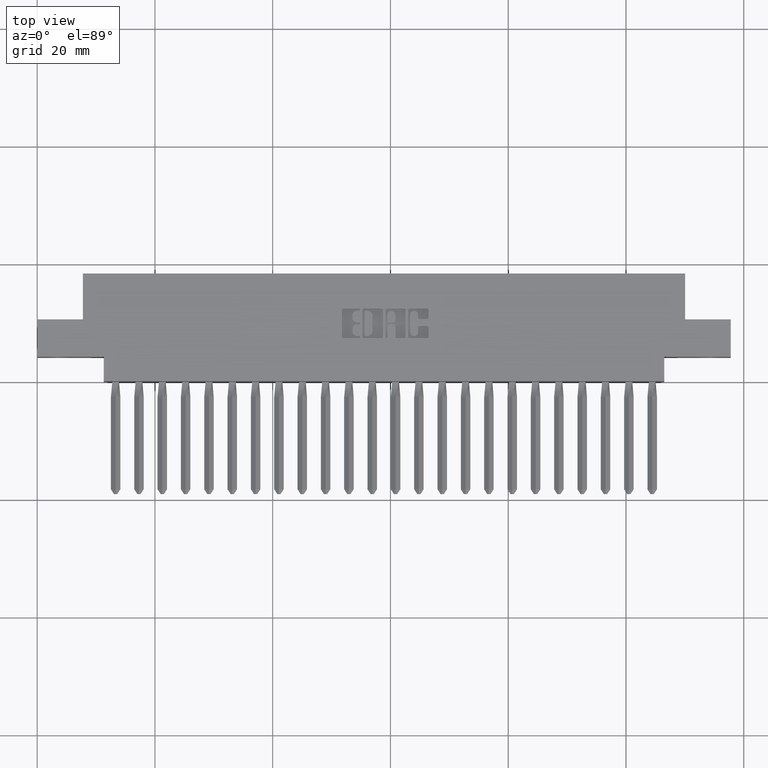
[diagram: clean part render]
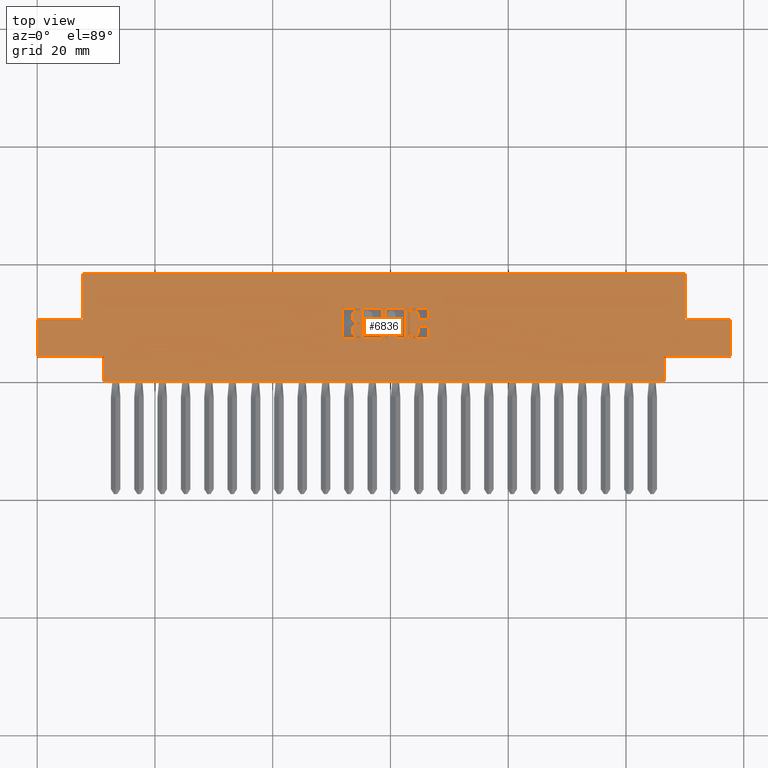
[diagram: same view with one face highlighted and labeled with its STEP entity id]
A machine part, top view. The second image highlights one B-rep face of the part: STEP entity #6836.
In plain terms, the highlighted planar face has unit normal (0, 0, -1).
Its self-contained STEP definition (entity closure, byte-faithful):
#42 = VERTEX_POINT ( 'NONE', #10212 ) ;
#85 = CIRCLE ( 'NONE', #21577, 0.009815670203806891800 ) ;
#97 = DIRECTION ( 'NONE',  ( 1.000000000000000000, 0.0000000000000000000, 0.0000000000000000000 ) ) ;
#242 = DIRECTION ( 'NONE',  ( 0.0000000000000000000, 1.000000000000000000, -0.0000000000000000000 ) ) ;
#245 = DIRECTION ( 'NONE',  ( 1.000000000000000000, 0.0000000000000000000, 0.0000000000000000000 ) ) ;
#303 = DIRECTION ( 'NONE',  ( -0.0000000000000000000, 0.0000000000000000000, 1.000000000000000000 ) ) ;
#346 = CARTESIAN_POINT ( 'NONE',  ( 4.333000000000000200, 0.4129999999999999200, -5.119635943835509400E-016 ) ) ;
#368 = AXIS2_PLACEMENT_3D ( 'NONE', #27549, #16309, #30520 ) ;
#476 = ORIENTED_EDGE ( 'NONE', *, *, #24068, .F. ) ;
#486 = EDGE_CURVE ( 'NONE', #7950, #7148, #17463, .T. ) ;
#493 = ORIENTED_EDGE ( 'NONE', *, *, #15737, .T. ) ;
#508 = VERTEX_POINT ( 'NONE', #2877 ) ;
#562 = CARTESIAN_POINT ( 'NONE',  ( 2.334459680570987400, 0.2937142671046481000, 0.0000000000000000000 ) ) ;
#580 = CARTESIAN_POINT ( 'NONE',  ( 2.520221239177992300, 0.4431578459575297200, 0.0000000000000000000 ) ) ;
#646 = CIRCLE ( 'NONE', #25206, 0.03141014465217467600 ) ;
#661 = VERTEX_POINT ( 'NONE', #23542 ) ;
#699 = DIRECTION ( 'NONE',  ( -0.0000000000000000000, 0.0000000000000000000, 1.000000000000000000 ) ) ;
#740 = LINE ( 'NONE', #24243, #13497 ) ;
#797 = CARTESIAN_POINT ( 'NONE',  ( 2.615678631909940300, 0.2966589681657831300, 0.0000000000000000000 ) ) ;
#874 = VECTOR ( 'NONE', #2374, 39.37007874015748100 ) ;
#929 = DIRECTION ( 'NONE',  ( -0.0000000000000000000, 0.0000000000000000000, 1.000000000000000000 ) ) ;
#936 = ORIENTED_EDGE ( 'NONE', *, *, #10068, .F. ) ;
#1008 = VERTEX_POINT ( 'NONE', #32148 ) ;
#1049 = LINE ( 'NONE', #25144, #32355 ) ;
#1052 = CARTESIAN_POINT ( 'NONE',  ( 0.3050000000000000500, 0.7199999999999999700, 0.0000000000000000000 ) ) ;
#1079 = VECTOR ( 'NONE', #20606, 39.37007874015748100 ) ;
#1107 = DIRECTION ( 'NONE',  ( 1.000000000000000000, 0.0000000000000000000, 0.0000000000000000000 ) ) ;
#1147 = ORIENTED_EDGE ( 'NONE', *, *, #15824, .F. ) ;
#1150 = LINE ( 'NONE', #12320, #7336 ) ;
#1162 = DIRECTION ( 'NONE',  ( -0.0000000000000000000, 0.0000000000000000000, 1.000000000000000000 ) ) ;
#1185 = EDGE_CURVE ( 'NONE', #32964, #28996, #646, .T. ) ;
#1305 = DIRECTION ( 'NONE',  ( 1.000000000000000000, 0.0000000000000000000, 0.0000000000000000000 ) ) ;
#1366 = CARTESIAN_POINT ( 'NONE',  ( 2.341330649713647000, 0.3683133606535457000, 0.0000000000000000000 ) ) ;
#1439 = ORIENTED_EDGE ( 'NONE', *, *, #30809, .T. ) ;
#1575 = EDGE_CURVE ( 'NONE', #15318, #29905, #17348, .T. ) ;
#1680 = VERTEX_POINT ( 'NONE', #21022 ) ;
#1738 = CARTESIAN_POINT ( 'NONE',  ( 2.138637060005125400, 0.4380046191005199100, 0.0000000000000000000 ) ) ;
#1806 = CARTESIAN_POINT ( 'NONE',  ( 2.038026440416115500, 0.4733410318342102200, 0.0000000000000000000 ) ) ;
#1928 = CARTESIAN_POINT ( 'NONE',  ( 2.138637060005109900, 0.3319953808994904900, 0.0000000000000000000 ) ) ;
#1955 = CARTESIAN_POINT ( 'NONE',  ( 2.605862961706167300, 0.4237718973050387800, 0.0000000000000000000 ) ) ;
#1976 = CIRCLE ( 'NONE', #6622, 0.009815670203804706000 ) ;
#1998 = EDGE_CURVE ( 'NONE', #17880, #661, #3234, .T. ) ;
#2214 = CARTESIAN_POINT ( 'NONE',  ( 2.107226915352909700, 0.4232811137948585000, 0.0000000000000000000 ) ) ;
#2237 = ORIENTED_EDGE ( 'NONE', *, *, #22080, .F. ) ;
#2276 = ORIENTED_EDGE ( 'NONE', *, *, #12579, .F. ) ;
#2369 = CARTESIAN_POINT ( 'NONE',  ( 4.637999999999999900, 0.7199999999999999700, 0.0000000000000000000 ) ) ;
#2374 = DIRECTION ( 'NONE',  ( 0.0000000000000000000, -1.000000000000000000, 0.0000000000000000000 ) ) ;
#2491 = EDGE_CURVE ( 'NONE', #7950, #30888, #30585, .T. ) ;
#2497 = VERTEX_POINT ( 'NONE', #11919 ) ;
#2531 = DIRECTION ( 'NONE',  ( 1.000000000000000000, 0.0000000000000000000, 0.0000000000000000000 ) ) ;
#2668 = DIRECTION ( 'NONE',  ( -0.0000000000000000000, 0.0000000000000000000, 1.000000000000000000 ) ) ;
#2675 = ORIENTED_EDGE ( 'NONE', *, *, #21218, .F. ) ;
#2725 = EDGE_CURVE ( 'NONE', #32699, #33099, #1976, .T. ) ;
#2866 = EDGE_CURVE ( 'NONE', #24790, #24560, #31154, .T. ) ;
#2877 = CARTESIAN_POINT ( 'NONE',  ( 2.615678631909971900, 0.4733410318341949600, 0.0000000000000000000 ) ) ;
#2937 = CARTESIAN_POINT ( 'NONE',  ( -0.0000000000000000000, 0.4139562271012337500, 0.0000000000000000000 ) ) ;
#3080 = ORIENTED_EDGE ( 'NONE', *, *, #10554, .F. ) ;
#3096 = CARTESIAN_POINT ( 'NONE',  ( 2.520221239177999000, 0.3268421540424530900, 0.0000000000000000000 ) ) ;
#3125 = DIRECTION ( 'NONE',  ( -0.0000000000000000000, -1.000000000000000000, -0.0000000000000000000 ) ) ;
#3173 = CARTESIAN_POINT ( 'NONE',  ( 4.637999999999999900, 0.4129999999999999200, 0.0000000000000000000 ) ) ;
#3184 = CARTESIAN_POINT ( 'NONE',  ( 2.605862961706132200, 0.4733410318342110600, 0.0000000000000000000 ) ) ;
#3217 = LINE ( 'NONE', #14078, #32797 ) ;
#3234 = LINE ( 'NONE', #31283, #8519 ) ;
#3298 = VERTEX_POINT ( 'NONE', #32689 ) ;
#3398 = CARTESIAN_POINT ( 'NONE',  ( 2.107226915352927900, 0.3467188862052006900, 0.0000000000000000000 ) ) ;
#3578 = AXIS2_PLACEMENT_3D ( 'NONE', #23004, #22529, #31083 ) ;
#3602 = CARTESIAN_POINT ( 'NONE',  ( 2.453229290037013800, 0.4831567020380067600, 0.0000000000000000000 ) ) ;
#3723 = CARTESIAN_POINT ( 'NONE',  ( 2.731847993664263200E-016, 0.1630000000000000100, 3.951581205970576600E-015 ) ) ;
#3806 = VECTOR ( 'NONE', #242, 39.37007874015748100 ) ;
#3826 = VERTEX_POINT ( 'NONE', #4679 ) ;
#3885 = DIRECTION ( 'NONE',  ( 0.0000000000000000000, -1.000000000000000000, 0.0000000000000000000 ) ) ;
#3940 = EDGE_CURVE ( 'NONE', #22383, #32699, #9827, .T. ) ;
#3946 = VERTEX_POINT ( 'NONE', #5906 ) ;
#4057 = EDGE_CURVE ( 'NONE', #26989, #33547, #20848, .T. ) ;
#4141 = DIRECTION ( 'NONE',  ( -0.0000000000000000000, -1.000000000000000000, -0.0000000000000000000 ) ) ;
#4193 = DIRECTION ( 'NONE',  ( 1.000000000000000000, 0.0000000000000000000, 0.0000000000000000000 ) ) ;
#4283 = EDGE_CURVE ( 'NONE', #2497, #21573, #3217, .T. ) ;
#4352 = ORIENTED_EDGE ( 'NONE', *, *, #1185, .T. ) ;
#4360 = VECTOR ( 'NONE', #7613, 39.37007874015748100 ) ;
#4395 = CIRCLE ( 'NONE', #5219, 0.009815670203806891800 ) ;
#4401 = EDGE_CURVE ( 'NONE', #31775, #5260, #8085, .T. ) ;
#4424 = CARTESIAN_POINT ( 'NONE',  ( 4.192999999999999600, 0.1630000000000000100, 0.0000000000000000000 ) ) ;
#4490 = ORIENTED_EDGE ( 'NONE', *, *, #26045, .F. ) ;
#4618 = EDGE_CURVE ( 'NONE', #508, #21593, #28770, .T. ) ;
#4679 = CARTESIAN_POINT ( 'NONE',  ( 2.107226915352927900, 0.3319953808994904900, 0.0000000000000000000 ) ) ;
#4709 = EDGE_CURVE ( 'NONE', #29047, #33567, #13319, .T. ) ;
#4722 = ORIENTED_EDGE ( 'NONE', *, *, #2491, .F. ) ;
#4811 = DIRECTION ( 'NONE',  ( 0.0000000000000000000, 0.0000000000000000000, -1.000000000000000000 ) ) ;
#4949 = CARTESIAN_POINT ( 'NONE',  ( 2.152133606535335800, 0.2937142671046481000, 0.0000000000000000000 ) ) ;
#5144 = ORIENTED_EDGE ( 'NONE', *, *, #4709, .F. ) ;
#5219 = AXIS2_PLACEMENT_3D ( 'NONE', #29223, #6804, #1107 ) ;
#5228 = CIRCLE ( 'NONE', #18371, 0.009815670203806073000 ) ;
#5260 = VERTEX_POINT ( 'NONE', #28040 ) ;
#5327 = VERTEX_POINT ( 'NONE', #3398 ) ;
#5441 = VECTOR ( 'NONE', #32563, 39.37007874015748100 ) ;
#5454 = DIRECTION ( 'NONE',  ( -1.000000000000000000, 0.0000000000000000000, 0.0000000000000000000 ) ) ;
#5475 = CARTESIAN_POINT ( 'NONE',  ( 0.0000000000000000000, 0.7199999999999999700, 0.0000000000000000000 ) ) ;
#5524 = DIRECTION ( 'NONE',  ( 1.000000000000000000, 0.0000000000000000000, 0.0000000000000000000 ) ) ;
#5633 = VERTEX_POINT ( 'NONE', #22890 ) ;
#5726 = EDGE_CURVE ( 'NONE', #29524, #5327, #22094, .T. ) ;
#5746 = ORIENTED_EDGE ( 'NONE', *, *, #25624, .F. ) ;
#5803 = CARTESIAN_POINT ( 'NONE',  ( 2.490038053301299600, 0.4831567020380511700, 0.0000000000000000000 ) ) ;
#5906 = CARTESIAN_POINT ( 'NONE',  ( 4.192999999999999600, 0.0000000000000000000, 0.0000000000000000000 ) ) ;
#5970 = EDGE_CURVE ( 'NONE', #26989, #33567, #9267, .T. ) ;
#6136 = VERTEX_POINT ( 'NONE', #26935 ) ;
#6253 = CARTESIAN_POINT ( 'NONE',  ( 2.393844485303985100, 0.3683133606535435900, 0.0000000000000000000 ) ) ;
#6265 = CARTESIAN_POINT ( 'NONE',  ( 2.615678631909971900, 0.0000000000000000000, 0.0000000000000000000 ) ) ;
#6332 = EDGE_CURVE ( 'NONE', #21408, #16161, #7955, .T. ) ;
#6425 = VECTOR ( 'NONE', #19221, 39.37007874015748100 ) ;
#6470 = CARTESIAN_POINT ( 'NONE',  ( 2.463044960240806900, 0.0000000000000000000, 0.0000000000000000000 ) ) ;
#6492 = EDGE_CURVE ( 'NONE', #35244, #15337, #11875, .T. ) ;
#6501 = CARTESIAN_POINT ( 'NONE',  ( 2.490038053301299600, 0.4733410318342102200, 0.0000000000000000000 ) ) ;
#6535 = LINE ( 'NONE', #14451, #31701 ) ;
#6545 = ORIENTED_EDGE ( 'NONE', *, *, #1998, .F. ) ;
#6573 = ORIENTED_EDGE ( 'NONE', *, *, #36329, .F. ) ;
#6580 = CARTESIAN_POINT ( 'NONE',  ( 0.3050000000000000500, 0.4129999999999999200, 0.0000000000000000000 ) ) ;
#6588 = ORIENTED_EDGE ( 'NONE', *, *, #10133, .F. ) ;
#6620 = DIRECTION ( 'NONE',  ( 1.000000000000000000, 0.0000000000000000000, 0.0000000000000000000 ) ) ;
#6622 = AXIS2_PLACEMENT_3D ( 'NONE', #1955, #36033, #17278 ) ;
#6686 = EDGE_CURVE ( 'NONE', #6136, #26353, #4395, .T. ) ;
#6742 = DIRECTION ( 'NONE',  ( 1.000000000000000000, -0.0000000000000000000, 1.678569161913281300E-015 ) ) ;
#6767 = ORIENTED_EDGE ( 'NONE', *, *, #6686, .F. ) ;
#6785 = EDGE_CURVE ( 'NONE', #32964, #22698, #34416, .T. ) ;
#6804 = DIRECTION ( 'NONE',  ( -0.0000000000000000000, 0.0000000000000000000, 1.000000000000000000 ) ) ;
#6836 = ADVANCED_FACE ( 'NONE', ( #30421, #26428, #24205, #18938, #33093 ), #24371, .F. ) ;
#7123 = CIRCLE ( 'NONE', #21689, 0.006870969142648433200 ) ;
#7148 = VERTEX_POINT ( 'NONE', #22983 ) ;
#7164 = DIRECTION ( 'NONE',  ( 1.000000000000000000, 0.0000000000000000000, 0.0000000000000000000 ) ) ;
#7202 = EDGE_CURVE ( 'NONE', #30299, #3946, #27264, .T. ) ;
#7267 = CIRCLE ( 'NONE', #36398, 0.009815670203803066700 ) ;
#7273 = EDGE_CURVE ( 'NONE', #21408, #5633, #8303, .T. ) ;
#7281 = CARTESIAN_POINT ( 'NONE',  ( 2.351146319917450300, 0.3683133606535457000, 0.0000000000000000000 ) ) ;
#7336 = VECTOR ( 'NONE', #18247, 39.37007874015748100 ) ;
#7340 = CIRCLE ( 'NONE', #23141, 0.009815670203796237100 ) ;
#7466 = CIRCLE ( 'NONE', #13768, 0.009815670203840767500 ) ;
#7513 = EDGE_CURVE ( 'NONE', #9082, #30888, #33453, .T. ) ;
#7553 = ORIENTED_EDGE ( 'NONE', *, *, #19937, .F. ) ;
#7593 = CIRCLE ( 'NONE', #17090, 0.006870969142648433200 ) ;
#7606 = ORIENTED_EDGE ( 'NONE', *, *, #15939, .F. ) ;
#7613 = DIRECTION ( 'NONE',  ( 1.000000000000000000, 0.0000000000000000000, 0.0000000000000000000 ) ) ;
#7745 = ORIENTED_EDGE ( 'NONE', *, *, #5970, .T. ) ;
#7867 = CARTESIAN_POINT ( 'NONE',  ( 0.3050000000000000500, 0.4129999999999999200, 0.0000000000000000000 ) ) ;
#7897 = DIRECTION ( 'NONE',  ( -0.0000000000000000000, 0.0000000000000000000, 1.000000000000000000 ) ) ;
#7950 = VERTEX_POINT ( 'NONE', #15844 ) ;
#7955 = LINE ( 'NONE', #8557, #13183 ) ;
#7956 = LINE ( 'NONE', #20530, #20298 ) ;
#7991 = EDGE_CURVE ( 'NONE', #33626, #30299, #740, .T. ) ;
#8061 = CARTESIAN_POINT ( 'NONE',  ( 2.159004575677973700, 0.3850000000000204900, 0.0000000000000000000 ) ) ;
#8085 = LINE ( 'NONE', #29493, #13742 ) ;
#8254 = CARTESIAN_POINT ( 'NONE',  ( 2.159004575677999900, 0.4762857328953863900, 0.0000000000000000000 ) ) ;
#8298 = DIRECTION ( 'NONE',  ( 1.000000000000000000, 0.0000000000000000000, 0.0000000000000000000 ) ) ;
#8303 = CIRCLE ( 'NONE', #31012, 0.009815670203803340800 ) ;
#8343 = CIRCLE ( 'NONE', #20301, 0.009815670203788314600 ) ;
#8382 = CIRCLE ( 'NONE', #21470, 0.006870969142662365600 ) ;
#8519 = VECTOR ( 'NONE', #9136, 39.37007874015748100 ) ;
#8557 = CARTESIAN_POINT ( 'NONE',  ( 2.393844485303985100, 0.0000000000000000000, 0.0000000000000000000 ) ) ;
#8562 = CARTESIAN_POINT ( 'NONE',  ( 2.384028815100188000, 0.3683133606535529100, 0.0000000000000000000 ) ) ;
#8615 = VERTEX_POINT ( 'NONE', #18476 ) ;
#8651 = DIRECTION ( 'NONE',  ( -0.0000000000000000000, 0.0000000000000000000, 1.000000000000000000 ) ) ;
#8663 = DIRECTION ( 'NONE',  ( 1.000000000000000000, 0.0000000000000000000, 0.0000000000000000000 ) ) ;
#8726 = VERTEX_POINT ( 'NONE', #8254 ) ;
#8787 = VECTOR ( 'NONE', #18459, 39.37007874015748100 ) ;
#8857 = CIRCLE ( 'NONE', #368, 0.006870969142663458500 ) ;
#8884 = DIRECTION ( 'NONE',  ( 1.000000000000000000, 0.0000000000000000000, 0.0000000000000000000 ) ) ;
#8948 = DIRECTION ( 'NONE',  ( -0.0000000000000000000, 0.0000000000000000000, 1.000000000000000000 ) ) ;
#8972 = CIRCLE ( 'NONE', #18874, 0.009815670203797057700 ) ;
#9064 = DIRECTION ( 'NONE',  ( 1.000000000000000000, 0.0000000000000000000, 0.0000000000000000000 ) ) ;
#9082 = VERTEX_POINT ( 'NONE', #29851 ) ;
#9136 = DIRECTION ( 'NONE',  ( 0.0000000000000000000, 1.000000000000000000, -0.0000000000000000000 ) ) ;
#9186 = VERTEX_POINT ( 'NONE', #16374 ) ;
#9267 = LINE ( 'NONE', #346, #26926 ) ;
#9329 = VECTOR ( 'NONE', #20495, 39.37007874015748100 ) ;
#9350 = CARTESIAN_POINT ( 'NONE',  ( 2.174955039759169500, 0.4733410318342102200, 0.0000000000000000000 ) ) ;
#9403 = AXIS2_PLACEMENT_3D ( 'NONE', #36376, #2668, #10647 ) ;
#9468 = EDGE_CURVE ( 'NONE', #33099, #508, #17335, .T. ) ;
#9479 = CARTESIAN_POINT ( 'NONE',  ( 2.615678631909971900, 0.4237718973050387800, 0.0000000000000000000 ) ) ;
#9501 = EDGE_LOOP ( 'NONE', ( #15266, #22121, #31399, #29042, #10343, #6545, #32980, #12959, #476, #20061, #29555, #936, #14767, #16809, #29829, #27626, #23206, #33076, #11975, #29169 ) ) ;
#9565 = DIRECTION ( 'NONE',  ( 1.000000000000000000, 0.0000000000000000000, 0.0000000000000000000 ) ) ;
#9646 = VERTEX_POINT ( 'NONE', #23826 ) ;
#9648 = VECTOR ( 'NONE', #19510, 39.37007874015748100 ) ;
#9688 = CARTESIAN_POINT ( 'NONE',  ( 2.047842110619922300, 0.2966589681657900700, 0.0000000000000000000 ) ) ;
#9762 = CARTESIAN_POINT ( 'NONE',  ( 2.546478156973178900, 0.0000000000000000000, 0.0000000000000000000 ) ) ;
#9812 = DIRECTION ( 'NONE',  ( -0.0000000000000000000, 0.0000000000000000000, 1.000000000000000000 ) ) ;
#9827 = LINE ( 'NONE', #2937, #23060 ) ;
#9876 = LINE ( 'NONE', #6580, #1079 ) ;
#10034 = CARTESIAN_POINT ( 'NONE',  ( 2.605862961706153100, 0.3565345564089705800, 0.0000000000000000000 ) ) ;
#10068 = EDGE_CURVE ( 'NONE', #15116, #15318, #21267, .T. ) ;
#10071 = EDGE_CURVE ( 'NONE', #15337, #2497, #85, .T. ) ;
#10133 = EDGE_CURVE ( 'NONE', #8726, #13088, #7593, .T. ) ;
#10157 = CARTESIAN_POINT ( 'NONE',  ( 2.174955039759169500, 0.0000000000000000000, 0.0000000000000000000 ) ) ;
#10165 = AXIS2_PLACEMENT_3D ( 'NONE', #33053, #4811, #15986 ) ;
#10212 = CARTESIAN_POINT ( 'NONE',  ( 2.546478156973166000, 0.4237718973050453300, 0.0000000000000000000 ) ) ;
#10228 = CARTESIAN_POINT ( 'NONE',  ( 2.546478156973166000, 0.4431578454992600700, 0.0000000000000000000 ) ) ;
#10278 = DIRECTION ( 'NONE',  ( 0.0000000000000000000, -1.000000000000000000, 0.0000000000000000000 ) ) ;
#10343 = ORIENTED_EDGE ( 'NONE', *, *, #26220, .T. ) ;
#10461 = ORIENTED_EDGE ( 'NONE', *, *, #2866, .F. ) ;
#10554 = EDGE_CURVE ( 'NONE', #14145, #11079, #31858, .T. ) ;
#10647 = DIRECTION ( 'NONE',  ( 1.000000000000000000, 0.0000000000000000000, 0.0000000000000000000 ) ) ;
#10848 = CARTESIAN_POINT ( 'NONE',  ( 0.0000000000000000000, 0.4831567020380511700, 0.0000000000000000000 ) ) ;
#11079 = VERTEX_POINT ( 'NONE', #30689 ) ;
#11199 = CARTESIAN_POINT ( 'NONE',  ( 2.310411288571669000, 0.0000000000000000000, 0.0000000000000000000 ) ) ;
#11262 = LINE ( 'NONE', #11199, #3806 ) ;
#11353 = CARTESIAN_POINT ( 'NONE',  ( 2.300595618367896400, 0.4831567020380511700, 0.0000000000000000000 ) ) ;
#11525 = DIRECTION ( 'NONE',  ( -0.0000000000000000000, 0.0000000000000000000, 1.000000000000000000 ) ) ;
#11594 = DIRECTION ( 'NONE',  ( 1.000000000000000000, 0.0000000000000000000, 0.0000000000000000000 ) ) ;
#11648 = ORIENTED_EDGE ( 'NONE', *, *, #35907, .F. ) ;
#11702 = EDGE_CURVE ( 'NONE', #25698, #35244, #7466, .T. ) ;
#11721 = VECTOR ( 'NONE', #34944, 39.37007874015748100 ) ;
#11875 = LINE ( 'NONE', #13803, #874 ) ;
#11919 = CARTESIAN_POINT ( 'NONE',  ( 2.490038053301265800, 0.2868432979619833200, 0.0000000000000000000 ) ) ;
#11940 = CIRCLE ( 'NONE', #20519, 0.009815670203806345400 ) ;
#11947 = LINE ( 'NONE', #34367, #18576 ) ;
#11975 = ORIENTED_EDGE ( 'NONE', *, *, #4618, .F. ) ;
#11987 = CARTESIAN_POINT ( 'NONE',  ( 2.310411288571669000, 0.2966589681657900700, 0.0000000000000000000 ) ) ;
#12097 = CARTESIAN_POINT ( 'NONE',  ( 2.184770709962976300, 0.2868432979619833200, 0.0000000000000000000 ) ) ;
#12320 = CARTESIAN_POINT ( 'NONE',  ( 2.107226915352927900, 0.0000000000000000000, 0.0000000000000000000 ) ) ;
#12579 = EDGE_CURVE ( 'NONE', #14917, #30725, #26771, .T. ) ;
#12655 = ORIENTED_EDGE ( 'NONE', *, *, #486, .T. ) ;
#12886 = VERTEX_POINT ( 'NONE', #19555 ) ;
#12891 = LINE ( 'NONE', #23664, #29708 ) ;
#12959 = ORIENTED_EDGE ( 'NONE', *, *, #16325, .F. ) ;
#13088 = VERTEX_POINT ( 'NONE', #15643 ) ;
#13116 = CARTESIAN_POINT ( 'NONE',  ( 2.453229290037011600, 0.4733410318342105000, 0.0000000000000000000 ) ) ;
#13183 = VECTOR ( 'NONE', #13840, 39.37007874015748100 ) ;
#13208 = DIRECTION ( 'NONE',  ( 1.000000000000000000, 0.0000000000000000000, 0.0000000000000000000 ) ) ;
#13212 = ORIENTED_EDGE ( 'NONE', *, *, #35123, .F. ) ;
#13270 = VERTEX_POINT ( 'NONE', #31112 ) ;
#13291 = EDGE_CURVE ( 'NONE', #42, #22383, #36052, .T. ) ;
#13309 = VECTOR ( 'NONE', #6742, 39.37007874015748100 ) ;
#13319 = LINE ( 'NONE', #14589, #20857 ) ;
#13390 = ORIENTED_EDGE ( 'NONE', *, *, #16064, .T. ) ;
#13497 = VECTOR ( 'NONE', #32789, 39.37007874015748100 ) ;
#13607 = CIRCLE ( 'NONE', #30230, 0.006870969142663458500 ) ;
#13695 = DIRECTION ( 'NONE',  ( -1.000000000000000000, -1.189163988687022500E-013, 0.0000000000000000000 ) ) ;
#13742 = VECTOR ( 'NONE', #35200, 39.37007874015748100 ) ;
#13768 = AXIS2_PLACEMENT_3D ( 'NONE', #6501, #1162, #6620 ) ;
#13803 = CARTESIAN_POINT ( 'NONE',  ( 2.480222383097458600, 0.0000000000000000000, 0.0000000000000000000 ) ) ;
#13812 = CARTESIAN_POINT ( 'NONE',  ( 2.138637060005084600, 0.4232811137948585000, 0.0000000000000000000 ) ) ;
#13840 = DIRECTION ( 'NONE',  ( 0.0000000000000000000, 1.000000000000000000, -0.0000000000000000000 ) ) ;
#14031 = CARTESIAN_POINT ( 'NONE',  ( 2.138637060005125400, 0.4694147637527358300, 0.0000000000000000000 ) ) ;
#14078 = CARTESIAN_POINT ( 'NONE',  ( -0.0000000000000000000, 0.2868432979619833200, 0.0000000000000000000 ) ) ;
#14127 = DIRECTION ( 'NONE',  ( -0.0000000000000000000, 0.0000000000000000000, 1.000000000000000000 ) ) ;
#14145 = VERTEX_POINT ( 'NONE', #24273 ) ;
#14281 = DIRECTION ( 'NONE',  ( -0.0000000000000000000, -1.000000000000000000, -0.0000000000000000000 ) ) ;
#14309 = LINE ( 'NONE', #21686, #6425 ) ;
#14320 = VERTEX_POINT ( 'NONE', #3602 ) ;
#14322 = EDGE_CURVE ( 'NONE', #1680, #26931, #7267, .T. ) ;
#14370 = CARTESIAN_POINT ( 'NONE',  ( 2.152133606535335800, 0.2937142671046481000, 0.0000000000000000000 ) ) ;
#14425 = ORIENTED_EDGE ( 'NONE', *, *, #19231, .F. ) ;
#14451 = CARTESIAN_POINT ( 'NONE',  ( 0.0000000000000000000, 0.3918709691426839900, 0.0000000000000000000 ) ) ;
#14474 = ORIENTED_EDGE ( 'NONE', *, *, #7273, .F. ) ;
#14581 = VERTEX_POINT ( 'NONE', #8061 ) ;
#14589 = CARTESIAN_POINT ( 'NONE',  ( 0.0000000000000000000, 0.7199999999999999700, 0.0000000000000000000 ) ) ;
#14604 = LINE ( 'NONE', #6470, #11721 ) ;
#14621 = ORIENTED_EDGE ( 'NONE', *, *, #30287, .F. ) ;
#14707 = LINE ( 'NONE', #27202, #25301 ) ;
#14767 = ORIENTED_EDGE ( 'NONE', *, *, #22667, .F. ) ;
#14917 = VERTEX_POINT ( 'NONE', #9350 ) ;
#14922 = CIRCLE ( 'NONE', #9403, 0.009815670203806891800 ) ;
#15116 = VERTEX_POINT ( 'NONE', #797 ) ;
#15266 = ORIENTED_EDGE ( 'NONE', *, *, #2725, .F. ) ;
#15318 = VERTEX_POINT ( 'NONE', #33475 ) ;
#15324 = ORIENTED_EDGE ( 'NONE', *, *, #7202, .F. ) ;
#15337 = VERTEX_POINT ( 'NONE', #21977 ) ;
#15348 = CARTESIAN_POINT ( 'NONE',  ( 0.0000000000000000000, 0.4129999999999999200, 0.0000000000000000000 ) ) ;
#15360 = CARTESIAN_POINT ( 'NONE',  ( 2.152133606415414400, 0.3005852362473103200, 0.0000000000000000000 ) ) ;
#15594 = DIRECTION ( 'NONE',  ( 1.000000000000000000, 0.0000000000000000000, 0.0000000000000000000 ) ) ;
#15643 = CARTESIAN_POINT ( 'NONE',  ( 2.152133606535351400, 0.4831567020380328500, 0.0000000000000000000 ) ) ;
#15715 = DIRECTION ( 'NONE',  ( 1.000000000000000000, 0.0000000000000000000, 0.0000000000000000000 ) ) ;
#15737 = EDGE_CURVE ( 'NONE', #18661, #1680, #24409, .T. ) ;
#15788 = LINE ( 'NONE', #2369, #9648 ) ;
#15801 = ORIENTED_EDGE ( 'NONE', *, *, #29528, .T. ) ;
#15824 = EDGE_CURVE ( 'NONE', #35037, #9186, #18253, .T. ) ;
#15844 = CARTESIAN_POINT ( 'NONE',  ( 0.4450000000000002800, 0.1630000000000000100, -3.443706799202358000E-016 ) ) ;
#15939 = EDGE_CURVE ( 'NONE', #29524, #1008, #34589, .T. ) ;
#15944 = DIRECTION ( 'NONE',  ( -1.000000000000000000, -3.530861605407645300E-014, 0.0000000000000000000 ) ) ;
#15986 = DIRECTION ( 'NONE',  ( -1.000000000000000000, 0.0000000000000000000, -0.0000000000000000000 ) ) ;
#15993 = VECTOR ( 'NONE', #3885, 39.37007874015748100 ) ;
#15999 = VECTOR ( 'NONE', #26113, 39.37007874015748100 ) ;
#16064 = EDGE_CURVE ( 'NONE', #16161, #18661, #8972, .T. ) ;
#16161 = VERTEX_POINT ( 'NONE', #6253 ) ;
#16296 = VERTEX_POINT ( 'NONE', #32373 ) ;
#16309 = DIRECTION ( 'NONE',  ( -0.0000000000000000000, 0.0000000000000000000, 1.000000000000000000 ) ) ;
#16325 = EDGE_CURVE ( 'NONE', #12886, #13270, #31061, .T. ) ;
#16374 = CARTESIAN_POINT ( 'NONE',  ( 2.152133606415414400, 0.2868432979619858200, 0.0000000000000000000 ) ) ;
#16375 = AXIS2_PLACEMENT_3D ( 'NONE', #13116, #27079, #15594 ) ;
#16535 = VECTOR ( 'NONE', #30938, 39.37007874015748100 ) ;
#16565 = VERTEX_POINT ( 'NONE', #36456 ) ;
#16638 = CARTESIAN_POINT ( 'NONE',  ( 4.333000000000000200, 0.4129999999999999200, -5.119635943835509400E-016 ) ) ;
#16734 = VERTEX_POINT ( 'NONE', #33949 ) ;
#16809 = ORIENTED_EDGE ( 'NONE', *, *, #4283, .F. ) ;
#16893 = VECTOR ( 'NONE', #34722, 39.37007874015748100 ) ;
#16973 = DIRECTION ( 'NONE',  ( -0.0000000000000000000, 0.0000000000000000000, 1.000000000000000000 ) ) ;
#17080 = DIRECTION ( 'NONE',  ( -0.0000000000000000000, 0.0000000000000000000, 1.000000000000000000 ) ) ;
#17090 = AXIS2_PLACEMENT_3D ( 'NONE', #25399, #8651, #11594 ) ;
#17164 = CARTESIAN_POINT ( 'NONE',  ( 2.152133606535351400, 0.4762857328953863900, 0.0000000000000000000 ) ) ;
#17278 = DIRECTION ( 'NONE',  ( 1.000000000000000000, 0.0000000000000000000, 0.0000000000000000000 ) ) ;
#17296 = DIRECTION ( 'NONE',  ( 1.000000000000000000, 0.0000000000000000000, 0.0000000000000000000 ) ) ;
#17335 = LINE ( 'NONE', #6265, #23947 ) ;
#17348 = CIRCLE ( 'NONE', #23802, 0.009815670203787221800 ) ;
#17377 = ORIENTED_EDGE ( 'NONE', *, *, #34307, .F. ) ;
#17391 = VECTOR ( 'NONE', #33512, 39.37007874015748100 ) ;
#17446 = CARTESIAN_POINT ( 'NONE',  ( 2.556293827176967100, 0.3565345564089696900, 0.0000000000000000000 ) ) ;
#17463 = LINE ( 'NONE', #36598, #28943 ) ;
#17629 = AXIS2_PLACEMENT_3D ( 'NONE', #1738, #21446, #7164 ) ;
#17767 = CIRCLE ( 'NONE', #21430, 0.009815670203841039800 ) ;
#17880 = VERTEX_POINT ( 'NONE', #18522 ) ;
#17931 = DIRECTION ( 'NONE',  ( 1.000000000000000000, 0.0000000000000000000, 0.0000000000000000000 ) ) ;
#17984 = LINE ( 'NONE', #18804, #4360 ) ;
#18093 = ORIENTED_EDGE ( 'NONE', *, *, #32906, .T. ) ;
#18103 = AXIS2_PLACEMENT_3D ( 'NONE', #28832, #23502, #9565 ) ;
#18107 = CARTESIAN_POINT ( 'NONE',  ( 2.605862961706167300, 0.4139562271012338600, 0.0000000000000000000 ) ) ;
#18247 = DIRECTION ( 'NONE',  ( 0.0000000000000000000, 1.000000000000000000, -0.0000000000000000000 ) ) ;
#18253 = LINE ( 'NONE', #21528, #17391 ) ;
#18371 = AXIS2_PLACEMENT_3D ( 'NONE', #9688, #9812, #23389 ) ;
#18420 = CARTESIAN_POINT ( 'NONE',  ( -1.335121276943922300E-014, 0.3781290308572657400, 0.0000000000000000000 ) ) ;
#18459 = DIRECTION ( 'NONE',  ( 0.0000000000000000000, 1.000000000000000000, -0.0000000000000000000 ) ) ;
#18476 = CARTESIAN_POINT ( 'NONE',  ( 2.341330649713647000, 0.2937142671046481000, 0.0000000000000000000 ) ) ;
#18522 = CARTESIAN_POINT ( 'NONE',  ( 2.493964321382818600, 0.3268421540424530900, 0.0000000000000000000 ) ) ;
#18576 = VECTOR ( 'NONE', #17296, 39.37007874015748100 ) ;
#18661 = VERTEX_POINT ( 'NONE', #30569 ) ;
#18726 = CARTESIAN_POINT ( 'NONE',  ( 2.300595618367828000, 0.4733410318342101100, 0.0000000000000000000 ) ) ;
#18804 = CARTESIAN_POINT ( 'NONE',  ( -0.0000000000000000000, 0.4831567020380067600, 0.0000000000000000000 ) ) ;
#18874 = AXIS2_PLACEMENT_3D ( 'NONE', #8562, #303, #28277 ) ;
#18938 = FACE_BOUND ( 'NONE', #23200, .T. ) ;
#18945 = ORIENTED_EDGE ( 'NONE', *, *, #6332, .T. ) ;
#18981 = EDGE_LOOP ( 'NONE', ( #18093, #30827, #4352, #19057, #20389, #35644, #7606, #26495, #19922, #21662, #36229, #10461, #11648, #1147, #21708, #34006, #17377, #22056, #6588, #13212, #14621 ) ) ;
#19057 = ORIENTED_EDGE ( 'NONE', *, *, #24781, .F. ) ;
#19221 = DIRECTION ( 'NONE',  ( 1.000000000000000000, 0.0000000000000000000, 0.0000000000000000000 ) ) ;
#19222 = EDGE_CURVE ( 'NONE', #33547, #33626, #15788, .T. ) ;
#19231 = EDGE_CURVE ( 'NONE', #35217, #30153, #33965, .T. ) ;
#19264 = CARTESIAN_POINT ( 'NONE',  ( 0.0000000000000000000, 0.4831567020380511700, 0.0000000000000000000 ) ) ;
#19401 = DIRECTION ( 'NONE',  ( -1.000000000000000000, 0.0000000000000000000, 0.0000000000000000000 ) ) ;
#19410 = DIRECTION ( 'NONE',  ( -0.0000000000000000000, 0.0000000000000000000, 1.000000000000000000 ) ) ;
#19510 = DIRECTION ( 'NONE',  ( -0.0000000000000000000, -1.000000000000000000, -0.0000000000000000000 ) ) ;
#19555 = CARTESIAN_POINT ( 'NONE',  ( 2.546478156973178900, 0.3565345564089688100, 0.0000000000000000000 ) ) ;
#19644 = LINE ( 'NONE', #10848, #32881 ) ;
#19815 = DIRECTION ( 'NONE',  ( -0.0000000000000000000, 0.0000000000000000000, 1.000000000000000000 ) ) ;
#19922 = ORIENTED_EDGE ( 'NONE', *, *, #32273, .F. ) ;
#19937 = EDGE_CURVE ( 'NONE', #16565, #35217, #29440, .T. ) ;
#19978 = LINE ( 'NONE', #15348, #5441 ) ;
#19983 = CARTESIAN_POINT ( 'NONE',  ( 2.556293827176977700, 0.4237718973050453300, 0.0000000000000000000 ) ) ;
#20029 = LINE ( 'NONE', #26169, #16893 ) ;
#20061 = ORIENTED_EDGE ( 'NONE', *, *, #32486, .F. ) ;
#20197 = VECTOR ( 'NONE', #3125, 39.37007874015748100 ) ;
#20285 = DIRECTION ( 'NONE',  ( 0.0000000000000000000, 1.000000000000000000, -0.0000000000000000000 ) ) ;
#20298 = VECTOR ( 'NONE', #32027, 39.37007874015748100 ) ;
#20301 = AXIS2_PLACEMENT_3D ( 'NONE', #17446, #929, #20668 ) ;
#20306 = DIRECTION ( 'NONE',  ( 1.000000000000000000, 0.0000000000000000000, 0.0000000000000000000 ) ) ;
#20312 = DIRECTION ( 'NONE',  ( -0.0000000000000000000, 1.000000000000000000, -0.0000000000000000000 ) ) ;
#20389 = ORIENTED_EDGE ( 'NONE', *, *, #31847, .F. ) ;
#20495 = DIRECTION ( 'NONE',  ( 0.0000000000000000000, 1.000000000000000000, -0.0000000000000000000 ) ) ;
#20519 = AXIS2_PLACEMENT_3D ( 'NONE', #25950, #699, #9064 ) ;
#20530 = CARTESIAN_POINT ( 'NONE',  ( 0.0000000000000000000, 0.4831567020380328500, 0.0000000000000000000 ) ) ;
#20606 = DIRECTION ( 'NONE',  ( -0.0000000000000000000, 1.000000000000000000, -0.0000000000000000000 ) ) ;
#20607 = EDGE_LOOP ( 'NONE', ( #25357, #27959, #15801, #5746, #32708, #14474, #18945, #13390, #493, #24401, #33486, #35566, #1439, #3080 ) ) ;
#20668 = DIRECTION ( 'NONE',  ( 1.000000000000000000, 0.0000000000000000000, 0.0000000000000000000 ) ) ;
#20713 = DIRECTION ( 'NONE',  ( 0.0000000000000000000, -1.000000000000000000, 0.0000000000000000000 ) ) ;
#20848 = LINE ( 'NONE', #3173, #13309 ) ;
#20857 = VECTOR ( 'NONE', #20306, 39.37007874015748100 ) ;
#20871 = VERTEX_POINT ( 'NONE', #32720 ) ;
#20879 = CARTESIAN_POINT ( 'NONE',  ( 2.138637060005109900, 0.3005852362473087100, 0.0000000000000000000 ) ) ;
#21022 = CARTESIAN_POINT ( 'NONE',  ( 2.351146319917450300, 0.3781290308573487800, 0.0000000000000000000 ) ) ;
#21132 = CARTESIAN_POINT ( 'NONE',  ( 4.192999999999999600, 0.1630000000000000100, 0.0000000000000000000 ) ) ;
#21218 = EDGE_CURVE ( 'NONE', #9082, #21337, #19978, .T. ) ;
#21223 = AXIS2_PLACEMENT_3D ( 'NONE', #4949, #22077, #36075 ) ;
#21256 = DIRECTION ( 'NONE',  ( -0.0000000000000000000, 0.0000000000000000000, 1.000000000000000000 ) ) ;
#21267 = LINE ( 'NONE', #28995, #9329 ) ;
#21337 = VERTEX_POINT ( 'NONE', #7867 ) ;
#21392 = CIRCLE ( 'NONE', #17629, 0.03141014465221592800 ) ;
#21408 = VERTEX_POINT ( 'NONE', #30549 ) ;
#21430 = AXIS2_PLACEMENT_3D ( 'NONE', #22107, #19410, #13208 ) ;
#21446 = DIRECTION ( 'NONE',  ( -0.0000000000000000000, 0.0000000000000000000, 1.000000000000000000 ) ) ;
#21470 = AXIS2_PLACEMENT_3D ( 'NONE', #14370, #14127, #25245 ) ;
#21488 = VECTOR ( 'NONE', #10278, 39.37007874015748100 ) ;
#21528 = CARTESIAN_POINT ( 'NONE',  ( -2.066260317444843400E-015, 0.2868432979619703300, 0.0000000000000000000 ) ) ;
#21573 = VERTEX_POINT ( 'NONE', #34387 ) ;
#21577 = AXIS2_PLACEMENT_3D ( 'NONE', #28879, #31754, #8884 ) ;
#21593 = VERTEX_POINT ( 'NONE', #22987 ) ;
#21662 = ORIENTED_EDGE ( 'NONE', *, *, #34574, .T. ) ;
#21686 = CARTESIAN_POINT ( 'NONE',  ( -0.0000000000000000000, 0.2868432979619833200, 0.0000000000000000000 ) ) ;
#21689 = AXIS2_PLACEMENT_3D ( 'NONE', #17164, #36473, #8298 ) ;
#21708 = ORIENTED_EDGE ( 'NONE', *, *, #24415, .F. ) ;
#21829 = CIRCLE ( 'NONE', #34321, 0.02625691779517339700 ) ;
#21895 = CARTESIAN_POINT ( 'NONE',  ( -0.0000000000000000000, 0.3781290308573569400, 0.0000000000000000000 ) ) ;
#21977 = CARTESIAN_POINT ( 'NONE',  ( 2.480222383097458600, 0.2966589681657900700, 0.0000000000000000000 ) ) ;
#22007 = VECTOR ( 'NONE', #33574, 39.37007874015748100 ) ;
#22056 = ORIENTED_EDGE ( 'NONE', *, *, #23681, .F. ) ;
#22066 = EDGE_CURVE ( 'NONE', #24560, #34878, #34116, .T. ) ;
#22077 = DIRECTION ( 'NONE',  ( -0.0000000000000000000, 0.0000000000000000000, 1.000000000000000000 ) ) ;
#22080 = EDGE_CURVE ( 'NONE', #30153, #14917, #17767, .T. ) ;
#22094 = CIRCLE ( 'NONE', #3578, 0.03141014465215637200 ) ;
#22107 = CARTESIAN_POINT ( 'NONE',  ( 2.184770709963010500, 0.4733410318342102200, 0.0000000000000000000 ) ) ;
#22121 = ORIENTED_EDGE ( 'NONE', *, *, #3940, .F. ) ;
#22175 = CIRCLE ( 'NONE', #18103, 0.009815670203822736800 ) ;
#22383 = VERTEX_POINT ( 'NONE', #25103 ) ;
#22421 = VECTOR ( 'NONE', #4141, 39.37007874015748100 ) ;
#22529 = DIRECTION ( 'NONE',  ( -0.0000000000000000000, 0.0000000000000000000, 1.000000000000000000 ) ) ;
#22667 = EDGE_CURVE ( 'NONE', #21573, #15116, #11940, .T. ) ;
#22698 = VERTEX_POINT ( 'NONE', #24652 ) ;
#22740 = VERTEX_POINT ( 'NONE', #10228 ) ;
#22747 = DIRECTION ( 'NONE',  ( 1.000000000000000000, 0.0000000000000000000, 0.0000000000000000000 ) ) ;
#22792 = DIRECTION ( 'NONE',  ( 1.000000000000000000, 0.0000000000000000000, 0.0000000000000000000 ) ) ;
#22890 = CARTESIAN_POINT ( 'NONE',  ( 2.403660155507785700, 0.2868432979619847700, 0.0000000000000000000 ) ) ;
#22983 = CARTESIAN_POINT ( 'NONE',  ( 0.4450000000000002800, 0.0000000000000000000, -3.443706799202358000E-016 ) ) ;
#22987 = CARTESIAN_POINT ( 'NONE',  ( 2.605862961706168600, 0.4831567020380511700, 0.0000000000000000000 ) ) ;
#23004 = CARTESIAN_POINT ( 'NONE',  ( 2.138637060005084600, 0.3467188862052006900, 0.0000000000000000000 ) ) ;
#23060 = VECTOR ( 'NONE', #22747, 39.37007874015748100 ) ;
#23141 = AXIS2_PLACEMENT_3D ( 'NONE', #36283, #16973, #97 ) ;
#23200 = EDGE_LOOP ( 'NONE', ( #7553, #27835, #6767, #4490, #6573, #2276, #2237, #14425 ) ) ;
#23206 = ORIENTED_EDGE ( 'NONE', *, *, #11702, .F. ) ;
#23389 = DIRECTION ( 'NONE',  ( 1.000000000000000000, 0.0000000000000000000, 0.0000000000000000000 ) ) ;
#23436 = CARTESIAN_POINT ( 'NONE',  ( 2.138637060005084600, 0.3781290308573569400, 0.0000000000000000000 ) ) ;
#23458 = CARTESIAN_POINT ( 'NONE',  ( 2.731847993664263200E-016, 0.1630000000000000100, 3.951581205970576600E-015 ) ) ;
#23502 = DIRECTION ( 'NONE',  ( -0.0000000000000000000, 0.0000000000000000000, 1.000000000000000000 ) ) ;
#23542 = CARTESIAN_POINT ( 'NONE',  ( 2.493964321382818600, 0.4431578459575297200, 0.0000000000000000000 ) ) ;
#23559 = EDGE_LOOP ( 'NONE', ( #4722, #12655, #35538, #15324, #29990, #26760, #33276, #7745, #5144, #30436, #2675, #33641 ) ) ;
#23664 = CARTESIAN_POINT ( 'NONE',  ( 2.327588711428331300, 0.0000000000000000000, 0.0000000000000000000 ) ) ;
#23681 = EDGE_CURVE ( 'NONE', #13088, #31713, #7956, .T. ) ;
#23760 = CARTESIAN_POINT ( 'NONE',  ( 2.463044960240806900, 0.2966589681657809700, 0.0000000000000000000 ) ) ;
#23802 = AXIS2_PLACEMENT_3D ( 'NONE', #10034, #21256, #1305 ) ;
#23826 = CARTESIAN_POINT ( 'NONE',  ( 2.327588711428331300, 0.2937142671046481000, 0.0000000000000000000 ) ) ;
#23899 = EDGE_CURVE ( 'NONE', #1008, #14581, #13607, .T. ) ;
#23947 = VECTOR ( 'NONE', #20285, 39.37007874015748100 ) ;
#24022 = CARTESIAN_POINT ( 'NONE',  ( 2.107226915352909700, 0.0000000000000000000, 0.0000000000000000000 ) ) ;
#24040 = LINE ( 'NONE', #25210, #16535 ) ;
#24068 = EDGE_CURVE ( 'NONE', #30041, #12886, #8343, .T. ) ;
#24205 = FACE_OUTER_BOUND ( 'NONE', #23559, .T. ) ;
#24243 = CARTESIAN_POINT ( 'NONE',  ( 4.637999999999999900, 0.1630000000000000100, 0.0000000000000000000 ) ) ;
#24273 = CARTESIAN_POINT ( 'NONE',  ( 2.337404381632127500, 0.4831567020380067600, 0.0000000000000000000 ) ) ;
#24371 = PLANE ( 'NONE',  #10165 ) ;
#24401 = ORIENTED_EDGE ( 'NONE', *, *, #14322, .T. ) ;
#24409 = LINE ( 'NONE', #18420, #33743 ) ;
#24415 = EDGE_CURVE ( 'NONE', #5260, #35037, #5228, .T. ) ;
#24422 = EDGE_CURVE ( 'NONE', #14145, #14320, #17984, .T. ) ;
#24462 = DIRECTION ( 'NONE',  ( -0.0000000000000000000, 0.0000000000000000000, 1.000000000000000000 ) ) ;
#24560 = VERTEX_POINT ( 'NONE', #15360 ) ;
#24652 = CARTESIAN_POINT ( 'NONE',  ( 2.107226915352909700, 0.4380046191005199100, 0.0000000000000000000 ) ) ;
#24781 = EDGE_CURVE ( 'NONE', #16734, #28996, #6535, .T. ) ;
#24790 = VERTEX_POINT ( 'NONE', #31555 ) ;
#24796 = CARTESIAN_POINT ( 'NONE',  ( -3.574451384759781800E-014, 0.3005852362470544100, 0.0000000000000000000 ) ) ;
#25103 = CARTESIAN_POINT ( 'NONE',  ( 2.556293827176977700, 0.4139562271012337500, 0.0000000000000000000 ) ) ;
#25144 = CARTESIAN_POINT ( 'NONE',  ( 0.0000000000000000000, 0.3663502266127576800, 0.0000000000000000000 ) ) ;
#25206 = AXIS2_PLACEMENT_3D ( 'NONE', #13812, #28023, #8663 ) ;
#25210 = CARTESIAN_POINT ( 'NONE',  ( 0.0000000000000000000, 0.2868432979619847700, 0.0000000000000000000 ) ) ;
#25245 = DIRECTION ( 'NONE',  ( 1.000000000000000000, 0.0000000000000000000, 0.0000000000000000000 ) ) ;
#25301 = VECTOR ( 'NONE', #15715, 39.37007874015748100 ) ;
#25357 = ORIENTED_EDGE ( 'NONE', *, *, #24422, .T. ) ;
#25399 = CARTESIAN_POINT ( 'NONE',  ( 2.152133606535351400, 0.4762857328953863900, 0.0000000000000000000 ) ) ;
#25525 = CARTESIAN_POINT ( 'NONE',  ( 2.480222383097458600, 0.4733410318342102200, 0.0000000000000000000 ) ) ;
#25624 = EDGE_CURVE ( 'NONE', #20871, #27413, #7340, .T. ) ;
#25698 = VERTEX_POINT ( 'NONE', #5803 ) ;
#25944 = DIRECTION ( 'NONE',  ( 1.000000000000000000, 0.0000000000000000000, 0.0000000000000000000 ) ) ;
#25950 = CARTESIAN_POINT ( 'NONE',  ( 2.605862961706134400, 0.2966589681657900700, 0.0000000000000000000 ) ) ;
#26045 = EDGE_CURVE ( 'NONE', #34965, #6136, #14309, .T. ) ;
#26096 = EDGE_CURVE ( 'NONE', #20871, #5633, #24040, .T. ) ;
#26113 = DIRECTION ( 'NONE',  ( -1.000000000000000000, -0.0000000000000000000, 9.653824462675984600E-015 ) ) ;
#26133 = CARTESIAN_POINT ( 'NONE',  ( 4.637999999999999900, 0.1630000000000000100, 0.0000000000000000000 ) ) ;
#26169 = CARTESIAN_POINT ( 'NONE',  ( 2.546478156973166000, 0.0000000000000000000, 0.0000000000000000000 ) ) ;
#26220 = EDGE_CURVE ( 'NONE', #22740, #661, #21829, .T. ) ;
#26353 = VERTEX_POINT ( 'NONE', #11987 ) ;
#26428 = FACE_BOUND ( 'NONE', #18981, .T. ) ;
#26495 = ORIENTED_EDGE ( 'NONE', *, *, #5726, .T. ) ;
#26496 = DIRECTION ( 'NONE',  ( 0.0000000000000000000, 1.000000000000000000, -0.0000000000000000000 ) ) ;
#26585 = DIRECTION ( 'NONE',  ( -0.0000000000000000000, 0.0000000000000000000, 1.000000000000000000 ) ) ;
#26760 = ORIENTED_EDGE ( 'NONE', *, *, #19222, .F. ) ;
#26771 = LINE ( 'NONE', #10157, #21488 ) ;
#26926 = VECTOR ( 'NONE', #20312, 39.37007874015748100 ) ;
#26931 = VERTEX_POINT ( 'NONE', #1366 ) ;
#26935 = CARTESIAN_POINT ( 'NONE',  ( 2.300595618367862200, 0.2868432979619833200, 0.0000000000000000000 ) ) ;
#26989 = VERTEX_POINT ( 'NONE', #16638 ) ;
#27061 = CARTESIAN_POINT ( 'NONE',  ( 2.047842110619938300, 0.4831567020380328500, 0.0000000000000000000 ) ) ;
#27079 = DIRECTION ( 'NONE',  ( -0.0000000000000000000, 0.0000000000000000000, 1.000000000000000000 ) ) ;
#27137 = VERTEX_POINT ( 'NONE', #14031 ) ;
#27148 = CARTESIAN_POINT ( 'NONE',  ( 2.047842110619918700, 0.2868432979619851000, 0.0000000000000000000 ) ) ;
#27155 = EDGE_CURVE ( 'NONE', #17880, #13270, #32054, .T. ) ;
#27178 = EDGE_CURVE ( 'NONE', #26353, #16565, #11262, .T. ) ;
#27202 = CARTESIAN_POINT ( 'NONE',  ( -0.0000000000000000000, 0.4694147637527358300, 0.0000000000000000000 ) ) ;
#27264 = LINE ( 'NONE', #21132, #22421 ) ;
#27315 = DIRECTION ( 'NONE',  ( 1.000000000000000000, 0.0000000000000000000, 0.0000000000000000000 ) ) ;
#27413 = VERTEX_POINT ( 'NONE', #23760 ) ;
#27450 = AXIS2_PLACEMENT_3D ( 'NONE', #18726, #7897, #30083 ) ;
#27505 = VECTOR ( 'NONE', #30278, 39.37007874015748100 ) ;
#27549 = CARTESIAN_POINT ( 'NONE',  ( 2.152133606535310100, 0.3850000000000204900, 0.0000000000000000000 ) ) ;
#27626 = ORIENTED_EDGE ( 'NONE', *, *, #6492, .F. ) ;
#27724 = CIRCLE ( 'NONE', #30959, 0.006870969142657995000 ) ;
#27835 = ORIENTED_EDGE ( 'NONE', *, *, #27178, .F. ) ;
#27959 = ORIENTED_EDGE ( 'NONE', *, *, #30340, .F. ) ;
#28023 = DIRECTION ( 'NONE',  ( -0.0000000000000000000, 0.0000000000000000000, 1.000000000000000000 ) ) ;
#28040 = CARTESIAN_POINT ( 'NONE',  ( 2.038026440416115500, 0.2966589681657900700, 0.0000000000000000000 ) ) ;
#28277 = DIRECTION ( 'NONE',  ( 1.000000000000000000, 0.0000000000000000000, 0.0000000000000000000 ) ) ;
#28282 = DIRECTION ( 'NONE',  ( 1.000000000000000000, 0.0000000000000000000, 0.0000000000000000000 ) ) ;
#28342 = VECTOR ( 'NONE', #13695, 39.37007874015748100 ) ;
#28623 = CARTESIAN_POINT ( 'NONE',  ( 4.637999999999999900, 0.4129999999999999200, 0.0000000000000000000 ) ) ;
#28770 = CIRCLE ( 'NONE', #29735, 0.009815670203839674600 ) ;
#28832 = CARTESIAN_POINT ( 'NONE',  ( 2.047842110619938300, 0.4733410318342102200, 0.0000000000000000000 ) ) ;
#28879 = CARTESIAN_POINT ( 'NONE',  ( 2.490038053301265800, 0.2966589681657900700, 0.0000000000000000000 ) ) ;
#28943 = VECTOR ( 'NONE', #14281, 39.37007874015748100 ) ;
#28995 = CARTESIAN_POINT ( 'NONE',  ( 2.615678631909940300, 0.0000000000000000000, 0.0000000000000000000 ) ) ;
#28996 = VERTEX_POINT ( 'NONE', #34990 ) ;
#29042 = ORIENTED_EDGE ( 'NONE', *, *, #30862, .F. ) ;
#29047 = VERTEX_POINT ( 'NONE', #1052 ) ;
#29169 = ORIENTED_EDGE ( 'NONE', *, *, #9468, .F. ) ;
#29223 = CARTESIAN_POINT ( 'NONE',  ( 2.300595618367862200, 0.2966589681657900700, 0.0000000000000000000 ) ) ;
#29280 = CARTESIAN_POINT ( 'NONE',  ( 2.403660155507788300, 0.2966589681657879600, 0.0000000000000000000 ) ) ;
#29440 = CIRCLE ( 'NONE', #27450, 0.009815670203841039800 ) ;
#29493 = CARTESIAN_POINT ( 'NONE',  ( 2.038026440416115500, 0.0000000000000000000, 0.0000000000000000000 ) ) ;
#29524 = VERTEX_POINT ( 'NONE', #23436 ) ;
#29528 = EDGE_CURVE ( 'NONE', #16296, #27413, #14604, .T. ) ;
#29555 = ORIENTED_EDGE ( 'NONE', *, *, #1575, .F. ) ;
#29708 = VECTOR ( 'NONE', #26496, 39.37007874015748100 ) ;
#29735 = AXIS2_PLACEMENT_3D ( 'NONE', #3184, #8948, #34280 ) ;
#29829 = ORIENTED_EDGE ( 'NONE', *, *, #10071, .F. ) ;
#29851 = CARTESIAN_POINT ( 'NONE',  ( 0.0000000000000000000, 0.4129999999999999200, 0.0000000000000000000 ) ) ;
#29905 = VERTEX_POINT ( 'NONE', #30975 ) ;
#29990 = ORIENTED_EDGE ( 'NONE', *, *, #7991, .F. ) ;
#30041 = VERTEX_POINT ( 'NONE', #31363 ) ;
#30083 = DIRECTION ( 'NONE',  ( 1.000000000000000000, 0.0000000000000000000, 0.0000000000000000000 ) ) ;
#30153 = VERTEX_POINT ( 'NONE', #32188 ) ;
#30170 = AXIS2_PLACEMENT_3D ( 'NONE', #1928, #24462, #27315 ) ;
#30183 = EDGE_CURVE ( 'NONE', #26931, #8615, #36458, .T. ) ;
#30230 = AXIS2_PLACEMENT_3D ( 'NONE', #33634, #17080, #5524 ) ;
#30278 = DIRECTION ( 'NONE',  ( 1.000000000000000000, 0.0000000000000000000, 0.0000000000000000000 ) ) ;
#30287 = EDGE_CURVE ( 'NONE', #27137, #3298, #14707, .T. ) ;
#30299 = VERTEX_POINT ( 'NONE', #4424 ) ;
#30340 = EDGE_CURVE ( 'NONE', #16296, #14320, #36423, .T. ) ;
#30421 = FACE_BOUND ( 'NONE', #9501, .T. ) ;
#30436 = ORIENTED_EDGE ( 'NONE', *, *, #32541, .F. ) ;
#30520 = DIRECTION ( 'NONE',  ( 1.000000000000000000, 0.0000000000000000000, 0.0000000000000000000 ) ) ;
#30549 = CARTESIAN_POINT ( 'NONE',  ( 2.393844485303985100, 0.2966589681657879600, 0.0000000000000000000 ) ) ;
#30569 = CARTESIAN_POINT ( 'NONE',  ( 2.384028815100188500, 0.3781290308573499500, 0.0000000000000000000 ) ) ;
#30585 = LINE ( 'NONE', #3723, #15999 ) ;
#30689 = CARTESIAN_POINT ( 'NONE',  ( 2.327588711428331300, 0.4733410318342102200, 0.0000000000000000000 ) ) ;
#30692 = VECTOR ( 'NONE', #20713, 39.37007874015748100 ) ;
#30725 = VERTEX_POINT ( 'NONE', #36325 ) ;
#30768 = CARTESIAN_POINT ( 'NONE',  ( 2.337404381632127500, 0.4733410318342102200, 0.0000000000000000000 ) ) ;
#30809 = EDGE_CURVE ( 'NONE', #9646, #11079, #12891, .T. ) ;
#30827 = ORIENTED_EDGE ( 'NONE', *, *, #6785, .F. ) ;
#30862 = EDGE_CURVE ( 'NONE', #22740, #42, #20029, .T. ) ;
#30888 = VERTEX_POINT ( 'NONE', #23458 ) ;
#30894 = DIRECTION ( 'NONE',  ( -0.0000000000000000000, 0.0000000000000000000, 1.000000000000000000 ) ) ;
#30938 = DIRECTION ( 'NONE',  ( -1.000000000000000000, 0.0000000000000000000, 0.0000000000000000000 ) ) ;
#30959 = AXIS2_PLACEMENT_3D ( 'NONE', #562, #19815, #28282 ) ;
#30975 = CARTESIAN_POINT ( 'NONE',  ( 2.605862961706157100, 0.3663502266127576800, 0.0000000000000000000 ) ) ;
#31012 = AXIS2_PLACEMENT_3D ( 'NONE', #29280, #34859, #17931 ) ;
#31061 = LINE ( 'NONE', #9762, #15993 ) ;
#31083 = DIRECTION ( 'NONE',  ( 1.000000000000000000, 0.0000000000000000000, 0.0000000000000000000 ) ) ;
#31112 = CARTESIAN_POINT ( 'NONE',  ( 2.546478156973178900, 0.3268421540424530900, 0.0000000000000000000 ) ) ;
#31154 = CIRCLE ( 'NONE', #21223, 0.006870969142662365600 ) ;
#31283 = CARTESIAN_POINT ( 'NONE',  ( 2.493964321382818600, 0.0000000000000000000, 0.0000000000000000000 ) ) ;
#31363 = CARTESIAN_POINT ( 'NONE',  ( 2.556293827176967100, 0.3663502266127576800, 0.0000000000000000000 ) ) ;
#31399 = ORIENTED_EDGE ( 'NONE', *, *, #13291, .F. ) ;
#31555 = CARTESIAN_POINT ( 'NONE',  ( 2.159004575677998100, 0.2937142671046481000, 0.0000000000000000000 ) ) ;
#31701 = VECTOR ( 'NONE', #33999, 39.37007874015748100 ) ;
#31713 = VERTEX_POINT ( 'NONE', #27061 ) ;
#31754 = DIRECTION ( 'NONE',  ( -0.0000000000000000000, 0.0000000000000000000, 1.000000000000000000 ) ) ;
#31775 = VERTEX_POINT ( 'NONE', #1806 ) ;
#31847 = EDGE_CURVE ( 'NONE', #14581, #16734, #8857, .T. ) ;
#31858 = CIRCLE ( 'NONE', #34837, 0.009815670203796511200 ) ;
#32027 = DIRECTION ( 'NONE',  ( -1.000000000000000000, 0.0000000000000000000, 0.0000000000000000000 ) ) ;
#32054 = CIRCLE ( 'NONE', #32203, 0.02625691779517995400 ) ;
#32148 = CARTESIAN_POINT ( 'NONE',  ( 2.152133606415389100, 0.3781290308573569400, 0.0000000000000000000 ) ) ;
#32188 = CARTESIAN_POINT ( 'NONE',  ( 2.184770709963010500, 0.4831567020380511700, 0.0000000000000000000 ) ) ;
#32203 = AXIS2_PLACEMENT_3D ( 'NONE', #3096, #34306, #22792 ) ;
#32273 = EDGE_CURVE ( 'NONE', #3826, #5327, #1150, .T. ) ;
#32299 = AXIS2_PLACEMENT_3D ( 'NONE', #19983, #33815, #245 ) ;
#32355 = VECTOR ( 'NONE', #5454, 39.37007874015748100 ) ;
#32373 = CARTESIAN_POINT ( 'NONE',  ( 2.463044960240806900, 0.4733410318342011200, 0.0000000000000000000 ) ) ;
#32486 = EDGE_CURVE ( 'NONE', #29905, #30041, #1049, .T. ) ;
#32541 = EDGE_CURVE ( 'NONE', #21337, #29047, #9876, .T. ) ;
#32563 = DIRECTION ( 'NONE',  ( 1.000000000000000000, 0.0000000000000000000, 0.0000000000000000000 ) ) ;
#32689 = CARTESIAN_POINT ( 'NONE',  ( 2.152133606535351800, 0.4694147637527358300, 0.0000000000000000000 ) ) ;
#32699 = VERTEX_POINT ( 'NONE', #18107 ) ;
#32708 = ORIENTED_EDGE ( 'NONE', *, *, #26096, .T. ) ;
#32720 = CARTESIAN_POINT ( 'NONE',  ( 2.453229290037010700, 0.2868432979619847700, 0.0000000000000000000 ) ) ;
#32789 = DIRECTION ( 'NONE',  ( -1.000000000000000000, 0.0000000000000000000, 0.0000000000000000000 ) ) ;
#32797 = VECTOR ( 'NONE', #2531, 39.37007874015748100 ) ;
#32881 = VECTOR ( 'NONE', #19401, 39.37007874015748100 ) ;
#32906 = EDGE_CURVE ( 'NONE', #27137, #22698, #21392, .T. ) ;
#32964 = VERTEX_POINT ( 'NONE', #2214 ) ;
#32980 = ORIENTED_EDGE ( 'NONE', *, *, #27155, .T. ) ;
#33053 = CARTESIAN_POINT ( 'NONE',  ( 0.0000000000000000000, 0.7199999999999999700, 0.0000000000000000000 ) ) ;
#33076 = ORIENTED_EDGE ( 'NONE', *, *, #33290, .F. ) ;
#33093 = FACE_BOUND ( 'NONE', #20607, .T. ) ;
#33099 = VERTEX_POINT ( 'NONE', #9479 ) ;
#33276 = ORIENTED_EDGE ( 'NONE', *, *, #4057, .F. ) ;
#33290 = EDGE_CURVE ( 'NONE', #21593, #25698, #19644, .T. ) ;
#33453 = LINE ( 'NONE', #5475, #20197 ) ;
#33475 = CARTESIAN_POINT ( 'NONE',  ( 2.615678631909940300, 0.3565345564089705800, 0.0000000000000000000 ) ) ;
#33486 = ORIENTED_EDGE ( 'NONE', *, *, #30183, .T. ) ;
#33512 = DIRECTION ( 'NONE',  ( 1.000000000000000000, 7.203446383881654600E-015, 0.0000000000000000000 ) ) ;
#33547 = VERTEX_POINT ( 'NONE', #28623 ) ;
#33567 = VERTEX_POINT ( 'NONE', #34335 ) ;
#33574 = DIRECTION ( 'NONE',  ( -1.000000000000000000, 0.0000000000000000000, 0.0000000000000000000 ) ) ;
#33626 = VERTEX_POINT ( 'NONE', #26133 ) ;
#33634 = CARTESIAN_POINT ( 'NONE',  ( 2.152133606535310100, 0.3850000000000204900, 0.0000000000000000000 ) ) ;
#33641 = ORIENTED_EDGE ( 'NONE', *, *, #7513, .T. ) ;
#33743 = VECTOR ( 'NONE', #15944, 39.37007874015748100 ) ;
#33815 = DIRECTION ( 'NONE',  ( -0.0000000000000000000, 0.0000000000000000000, 1.000000000000000000 ) ) ;
#33949 = CARTESIAN_POINT ( 'NONE',  ( 2.152133606535310100, 0.3918709691426839900, 0.0000000000000000000 ) ) ;
#33965 = LINE ( 'NONE', #19264, #22007 ) ;
#33999 = DIRECTION ( 'NONE',  ( -1.000000000000000000, 0.0000000000000000000, 0.0000000000000000000 ) ) ;
#34006 = ORIENTED_EDGE ( 'NONE', *, *, #4401, .F. ) ;
#34116 = LINE ( 'NONE', #24796, #28342 ) ;
#34280 = DIRECTION ( 'NONE',  ( 1.000000000000000000, 0.0000000000000000000, 0.0000000000000000000 ) ) ;
#34306 = DIRECTION ( 'NONE',  ( -0.0000000000000000000, 0.0000000000000000000, 1.000000000000000000 ) ) ;
#34307 = EDGE_CURVE ( 'NONE', #31713, #31775, #22175, .T. ) ;
#34321 = AXIS2_PLACEMENT_3D ( 'NONE', #580, #11525, #25944 ) ;
#34335 = CARTESIAN_POINT ( 'NONE',  ( 4.333000000000000200, 0.7199999999999999700, -5.119635943835509400E-016 ) ) ;
#34367 = CARTESIAN_POINT ( 'NONE',  ( 0.0000000000000000000, 0.0000000000000000000, 0.0000000000000000000 ) ) ;
#34387 = CARTESIAN_POINT ( 'NONE',  ( 2.605862961706134400, 0.2868432979619833200, 0.0000000000000000000 ) ) ;
#34416 = LINE ( 'NONE', #24022, #8787 ) ;
#34574 = EDGE_CURVE ( 'NONE', #3826, #34878, #34977, .T. ) ;
#34589 = LINE ( 'NONE', #21895, #27505 ) ;
#34722 = DIRECTION ( 'NONE',  ( 0.0000000000000000000, -1.000000000000000000, 0.0000000000000000000 ) ) ;
#34775 = CARTESIAN_POINT ( 'NONE',  ( 2.341330649713647000, 0.0000000000000000000, 0.0000000000000000000 ) ) ;
#34793 = EDGE_CURVE ( 'NONE', #7148, #3946, #11947, .T. ) ;
#34837 = AXIS2_PLACEMENT_3D ( 'NONE', #30768, #30894, #36607 ) ;
#34859 = DIRECTION ( 'NONE',  ( -0.0000000000000000000, 0.0000000000000000000, 1.000000000000000000 ) ) ;
#34878 = VERTEX_POINT ( 'NONE', #20879 ) ;
#34944 = DIRECTION ( 'NONE',  ( 0.0000000000000000000, -1.000000000000000000, 0.0000000000000000000 ) ) ;
#34965 = VERTEX_POINT ( 'NONE', #12097 ) ;
#34977 = CIRCLE ( 'NONE', #30170, 0.03141014465218178200 ) ;
#34990 = CARTESIAN_POINT ( 'NONE',  ( 2.138637060005084600, 0.3918709691426839900, 0.0000000000000000000 ) ) ;
#35037 = VERTEX_POINT ( 'NONE', #27148 ) ;
#35123 = EDGE_CURVE ( 'NONE', #3298, #8726, #7123, .T. ) ;
#35200 = DIRECTION ( 'NONE',  ( 0.0000000000000000000, -1.000000000000000000, 0.0000000000000000000 ) ) ;
#35217 = VERTEX_POINT ( 'NONE', #11353 ) ;
#35244 = VERTEX_POINT ( 'NONE', #25525 ) ;
#35538 = ORIENTED_EDGE ( 'NONE', *, *, #34793, .T. ) ;
#35566 = ORIENTED_EDGE ( 'NONE', *, *, #36465, .F. ) ;
#35644 = ORIENTED_EDGE ( 'NONE', *, *, #23899, .F. ) ;
#35907 = EDGE_CURVE ( 'NONE', #9186, #24790, #8382, .T. ) ;
#36033 = DIRECTION ( 'NONE',  ( -0.0000000000000000000, 0.0000000000000000000, 1.000000000000000000 ) ) ;
#36052 = CIRCLE ( 'NONE', #32299, 0.009815670203811809700 ) ;
#36075 = DIRECTION ( 'NONE',  ( 1.000000000000000000, 0.0000000000000000000, 0.0000000000000000000 ) ) ;
#36229 = ORIENTED_EDGE ( 'NONE', *, *, #22066, .F. ) ;
#36283 = CARTESIAN_POINT ( 'NONE',  ( 2.453229290037010700, 0.2966589681657809700, 0.0000000000000000000 ) ) ;
#36325 = CARTESIAN_POINT ( 'NONE',  ( 2.174955039759169500, 0.2966589681657900700, 0.0000000000000000000 ) ) ;
#36329 = EDGE_CURVE ( 'NONE', #30725, #34965, #14922, .T. ) ;
#36376 = CARTESIAN_POINT ( 'NONE',  ( 2.184770709962976300, 0.2966589681657900700, 0.0000000000000000000 ) ) ;
#36398 = AXIS2_PLACEMENT_3D ( 'NONE', #7281, #26585, #4193 ) ;
#36423 = CIRCLE ( 'NONE', #16375, 0.009815670203795690700 ) ;
#36456 = CARTESIAN_POINT ( 'NONE',  ( 2.310411288571669000, 0.4733410318342102200, 0.0000000000000000000 ) ) ;
#36458 = LINE ( 'NONE', #34775, #30692 ) ;
#36465 = EDGE_CURVE ( 'NONE', #9646, #8615, #27724, .T. ) ;
#36473 = DIRECTION ( 'NONE',  ( -0.0000000000000000000, 0.0000000000000000000, 1.000000000000000000 ) ) ;
#36598 = CARTESIAN_POINT ( 'NONE',  ( 0.4450000000000002800, 0.1630000000000000100, -3.443706799202358000E-016 ) ) ;
#36607 = DIRECTION ( 'NONE',  ( 1.000000000000000000, 0.0000000000000000000, 0.0000000000000000000 ) ) ;